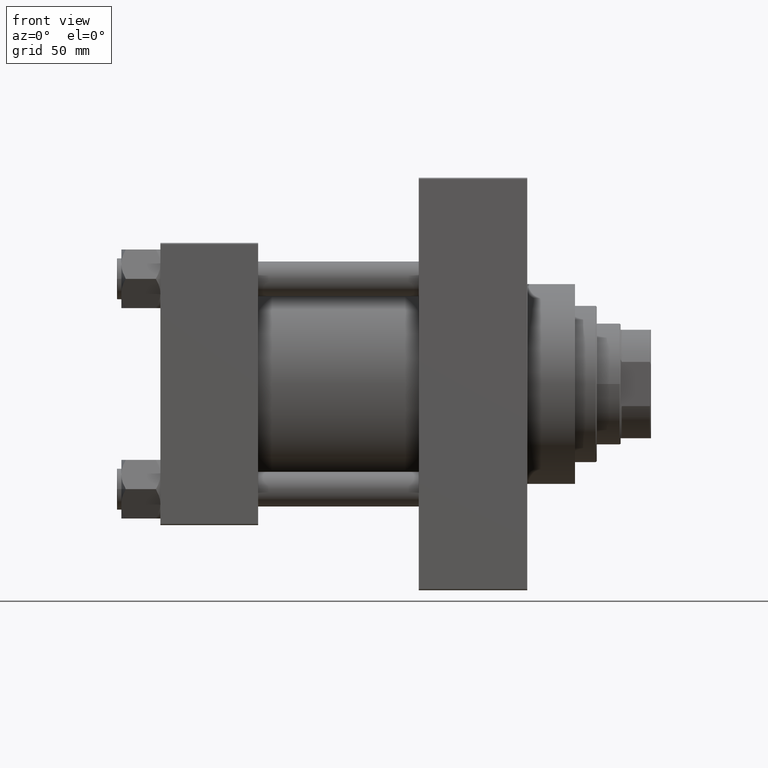
[diagram: clean part render]
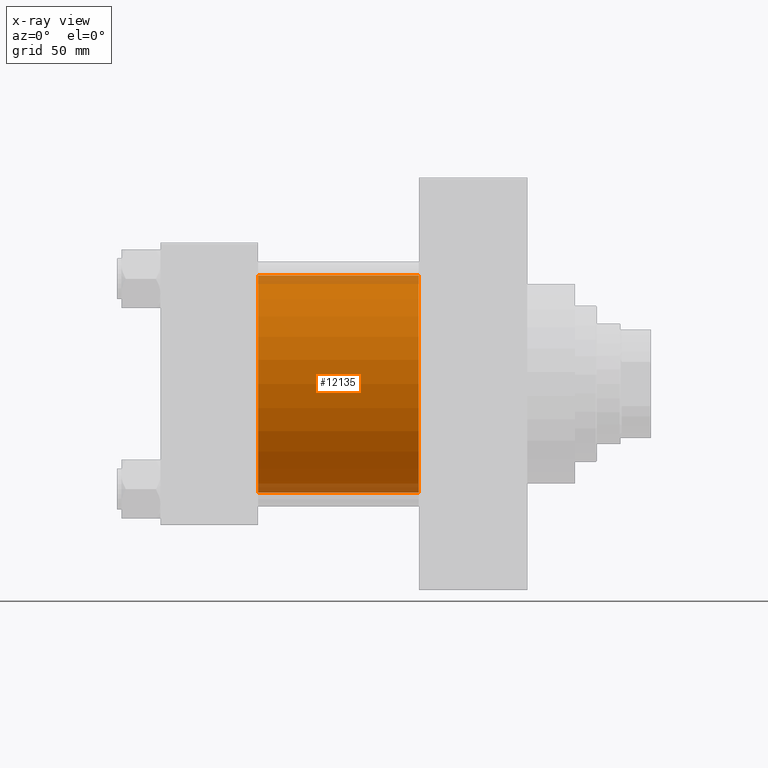
[diagram: x-ray — body ghosted, one internal face saturated and labeled with its STEP entity id]
A machine part, front view, then the same camera in x-ray: the body is ghosted and one INTERNAL B-rep face — a face not visible from any outside direction — is saturated and labeled: STEP entity #12135.
In plain terms, the highlighted cylindrical surface (partial cylindrical patch) has radius 50 mm, axis along (-1, -0, -0).
Its self-contained STEP definition (entity closure, byte-faithful):
#118 = CARTESIAN_POINT ( 'NONE',  ( 119.0000000000000000, -2.602085213965210642E-15, 0.000000000000000000 ) ) ;
#722 = EDGE_CURVE ( 'NONE', #40394, #17576, #36871, .T. ) ;
#3108 = EDGE_LOOP ( 'NONE', ( #34413, #17342, #40328, #22839 ) ) ;
#4600 = DIRECTION ( 'NONE',  ( 1.000000000000000000, 0.000000000000000000, 0.000000000000000000 ) ) ;
#4767 = VERTEX_POINT ( 'NONE', #22770 ) ;
#7624 = CARTESIAN_POINT ( 'NONE',  ( 119.0000000000000000, -2.602085213965210642E-15, 50.00000000000000000 ) ) ;
#10339 = CARTESIAN_POINT ( 'NONE',  ( 119.0000000000000000, 3.521148781771555838E-15, -50.00000000000000000 ) ) ;
#11226 = LINE ( 'NONE', #7624, #31501 ) ;
#12135 = ADVANCED_FACE ( 'NONE', ( #47453 ), #35380, .F. ) ;
#13337 = CARTESIAN_POINT ( 'NONE',  ( 45.00000000000000000, 3.521148781771555838E-15, -50.00000000000000000 ) ) ;
#15422 = DIRECTION ( 'NONE',  ( 0.000000000000000000, 0.000000000000000000, -1.000000000000000000 ) ) ;
#16134 = CARTESIAN_POINT ( 'NONE',  ( 119.0000000000000000, -2.602085213965210642E-15, 0.000000000000000000 ) ) ;
#17342 = ORIENTED_EDGE ( 'NONE', *, *, #722, .T. ) ;
#17576 = VERTEX_POINT ( 'NONE', #13337 ) ;
#18984 = CARTESIAN_POINT ( 'NONE',  ( 119.0000000000000000, 3.521148781771555838E-15, -50.00000000000000000 ) ) ;
#22770 = CARTESIAN_POINT ( 'NONE',  ( 45.00000000000000000, -2.602085213965210642E-15, 50.00000000000000000 ) ) ;
#22839 = ORIENTED_EDGE ( 'NONE', *, *, #44586, .F. ) ;
#22929 = CIRCLE ( 'NONE', #43781, 50.00000000000000000 ) ;
#23763 = CARTESIAN_POINT ( 'NONE',  ( 119.0000000000000000, -2.602085213965210642E-15, 50.00000000000000000 ) ) ;
#24019 = AXIS2_PLACEMENT_3D ( 'NONE', #34512, #4600, #15422 ) ;
#24512 = EDGE_CURVE ( 'NONE', #4767, #17576, #44843, .T. ) ;
#29116 = DIRECTION ( 'NONE',  ( -1.000000000000000000, -0.000000000000000000, -0.000000000000000000 ) ) ;
#31107 = DIRECTION ( 'NONE',  ( 0.000000000000000000, 0.000000000000000000, -1.000000000000000000 ) ) ;
#31501 = VECTOR ( 'NONE', #29116, 1000.000000000000000 ) ;
#33676 = AXIS2_PLACEMENT_3D ( 'NONE', #118, #37033, #40424 ) ;
#34413 = ORIENTED_EDGE ( 'NONE', *, *, #42769, .T. ) ;
#34512 = CARTESIAN_POINT ( 'NONE',  ( 45.00000000000000000, -2.602085213965210642E-15, 0.000000000000000000 ) ) ;
#35380 = CYLINDRICAL_SURFACE ( 'NONE', #33676, 50.00000000000000000 ) ;
#36871 = LINE ( 'NONE', #18984, #40384 ) ;
#37033 = DIRECTION ( 'NONE',  ( -1.000000000000000000, -0.000000000000000000, -0.000000000000000000 ) ) ;
#37100 = DIRECTION ( 'NONE',  ( -1.000000000000000000, -0.000000000000000000, -0.000000000000000000 ) ) ;
#37634 = DIRECTION ( 'NONE',  ( 1.000000000000000000, 0.000000000000000000, 0.000000000000000000 ) ) ;
#40328 = ORIENTED_EDGE ( 'NONE', *, *, #24512, .F. ) ;
#40384 = VECTOR ( 'NONE', #37100, 1000.000000000000000 ) ;
#40394 = VERTEX_POINT ( 'NONE', #10339 ) ;
#40424 = DIRECTION ( 'NONE',  ( 0.000000000000000000, 0.000000000000000000, 1.000000000000000000 ) ) ;
#40795 = VERTEX_POINT ( 'NONE', #23763 ) ;
#42769 = EDGE_CURVE ( 'NONE', #40795, #40394, #22929, .T. ) ;
#43781 = AXIS2_PLACEMENT_3D ( 'NONE', #16134, #37634, #31107 ) ;
#44586 = EDGE_CURVE ( 'NONE', #40795, #4767, #11226, .T. ) ;
#44843 = CIRCLE ( 'NONE', #24019, 50.00000000000000000 ) ;
#47453 = FACE_OUTER_BOUND ( 'NONE', #3108, .T. ) ;